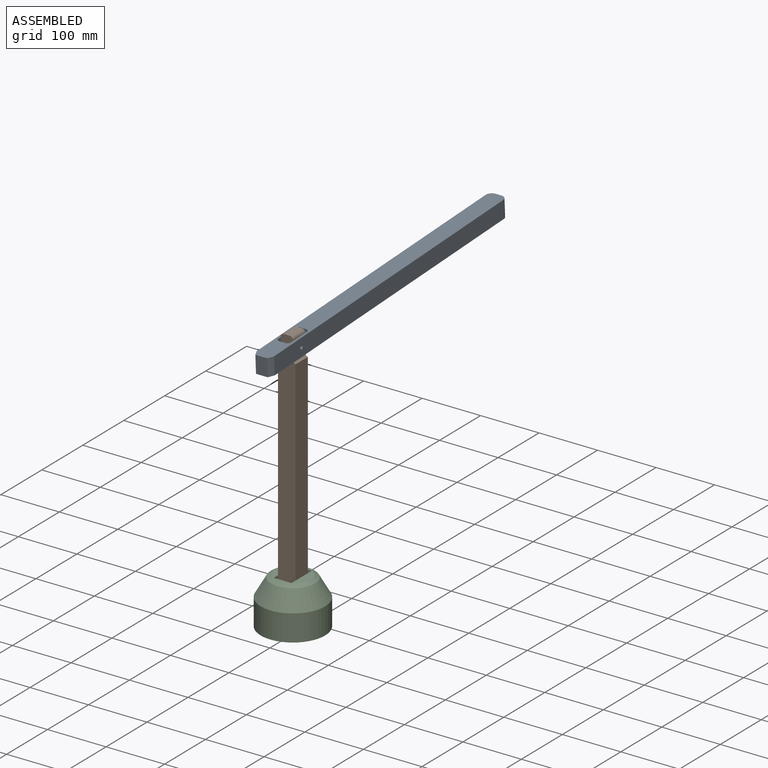
[diagram: assembled view]
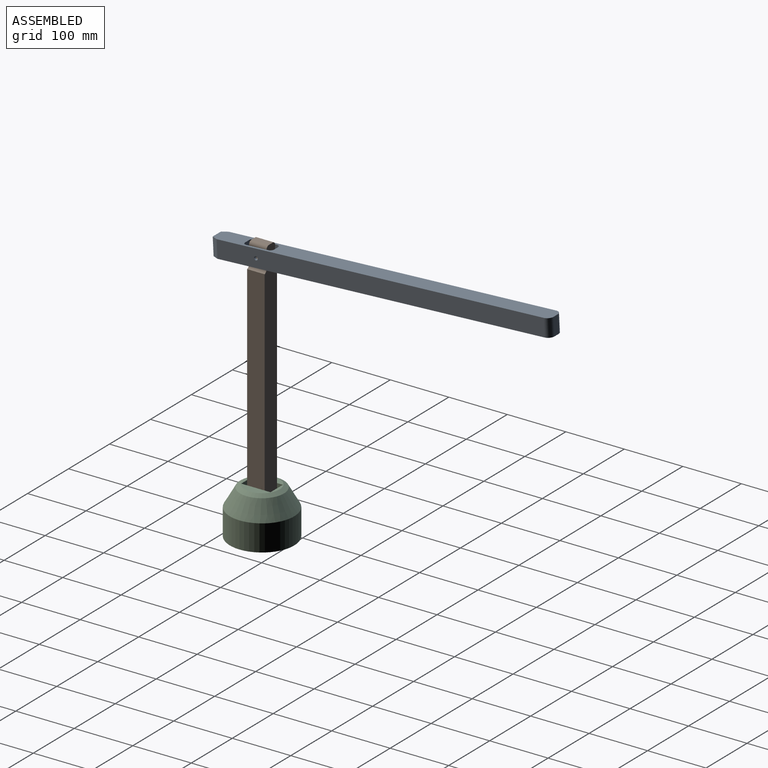
[diagram: assembled view, second angle]
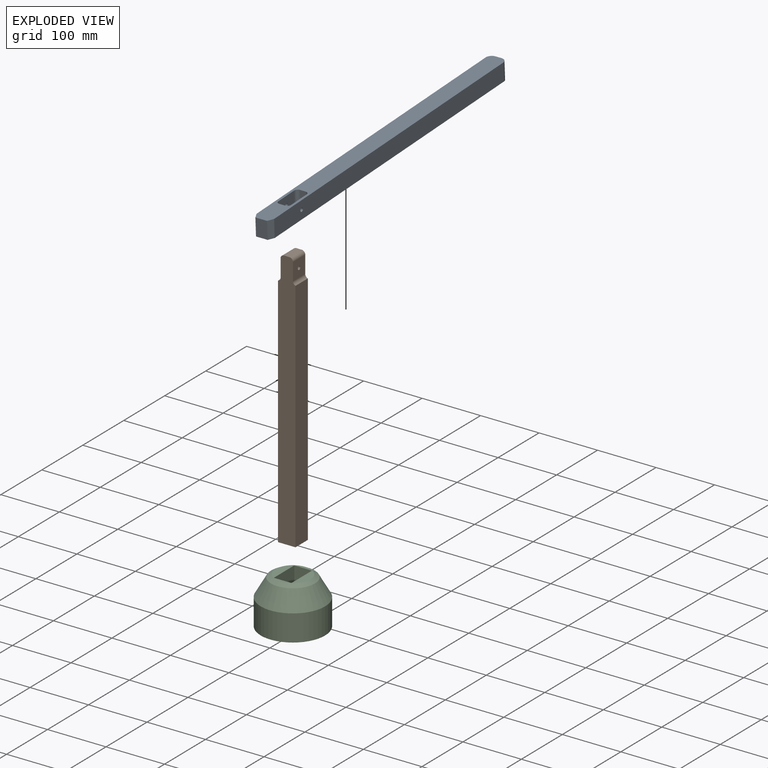
[diagram: exploded view]
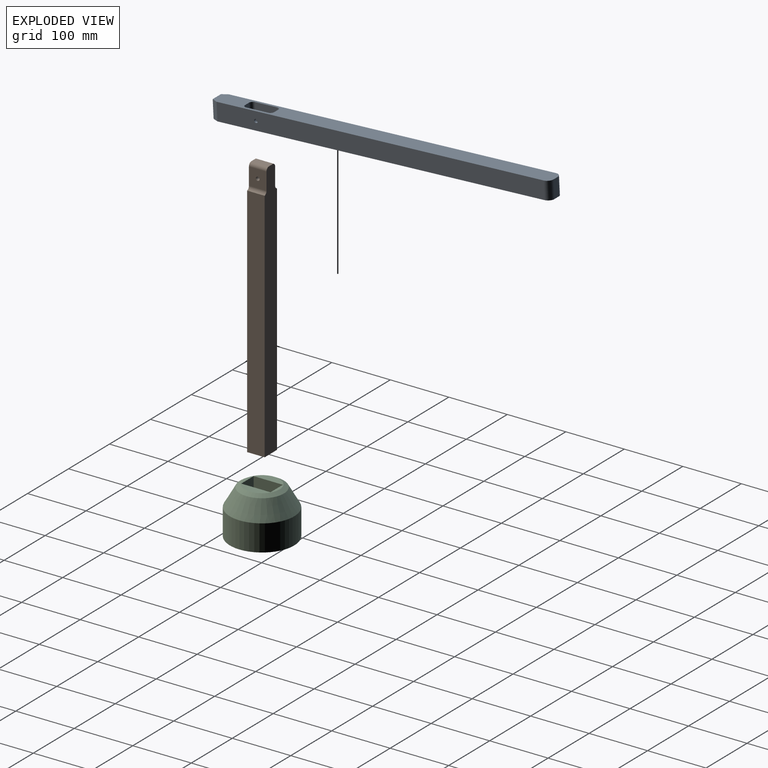
[diagram: exploded view, second angle]
ASSEMBLY  parts=3 mates=2
PART A: 29 faces, bbox 580x30x30 mm
  f0: plane 580x30mm, normal (0,0,1), area 8079.9mm2, adj f2,f3,f4,f5,f6,f7,f8,f9
  f1: plane 580x30mm, normal (0,0,-1), area 16258mm2, adj f2,f3,f4,f5,f6,f7,f8,f9
  f2: plane 560x30mm, normal (0,-1,0), area 16769.8mm2, adj f0,f1,f6,f8,f27
  f3: plane 560x30mm, normal (0,1,0), area 16769.8mm2, adj f0,f1,f7,f9,f28
  f4: plane 30x10mm, normal (1,0,0), area 300mm2, adj f0,f1,f6,f7
  f5: plane 30x20mm, normal (-1,0,0), area 600mm2, adj f0,f1,f8,f9
  f6: cylinder r=10mm len=30mm, axis (0,0,1), area 471.2mm2, adj f0,f1,f2,f4
  f7: cylinder r=10mm len=30mm, axis (0,0,-1), area 471.2mm2, adj f0,f1,f3,f4
  f8: plane 30x10mm, normal (-0.45,-0.89,0), area 335.4mm2, adj f0,f1,f2,f5
  f9: plane 30x10mm, normal (-0.45,0.89,0), area 335.4mm2, adj f0,f1,f3,f5
  f10: cylinder r=5.8mm len=20mm, axis (0,0,1), area 182.2mm2, adj f0,f11,f17,f18
  f11: plane 20x10mm, normal (-1,0,0), area 200mm2, adj f0,f10,f12,f18
  f12: cylinder r=5.8mm len=20mm, axis (0,0,1), area 182.2mm2, adj f0,f11,f13,f18
  f13: plane 368.2x20mm, normal (0,-1,0), area 7364mm2, adj f0,f12,f14,f18
  f14: cylinder r=6mm len=20mm, axis (0,0,1), area 188.5mm2, adj f0,f13,f15,f18
  f15: plane 20x9.6mm, normal (1,0,0), area 192mm2, adj f0,f14,f16,f18
  f16: cylinder r=6mm len=20mm, axis (0,0,1), area 188.5mm2, adj f0,f15,f17,f18
  f17: plane 368.2x20mm, normal (0,1,0), area 7364mm2, adj f0,f10,f16,f18
  f18: plane 380x21.6mm, normal (0,0,1), area 8178.1mm2, adj f10,f11,f12,f13,f14,f15,f16,f17
  f19: plane 30x9.6mm, normal (-1,0,0), area 288mm2, adj f0,f1,f20,f26
  f20: cylinder r=6mm len=30mm, axis (0,0,1), area 282.7mm2, adj f0,f1,f19,f21
  f21: plane 38x30mm, normal (0,-1,0), area 1109.8mm2, adj f0,f1,f20,f22,f28
  f22: cylinder r=6mm len=30mm, axis (0,0,1), area 282.7mm2, adj f0,f1,f21,f23
  f23: plane 30x9.6mm, normal (1,0,0), area 288mm2, adj f0,f1,f22,f24
  f24: cylinder r=6mm len=30mm, axis (0,0,1), area 282.7mm2, adj f0,f1,f23,f25
  f25: plane 38x30mm, normal (0,1,0), area 1109.8mm2, adj f0,f1,f24,f26,f27
  f26: cylinder r=6mm len=30mm, axis (0,0,1), area 282.7mm2, adj f0,f1,f19,f25
  f27: cylinder r=3.1mm len=6.2mm, axis (0,-1,0), area 81.8mm2, adj f2,f25
  f28: cylinder r=3.1mm len=6.2mm, axis (0,-1,0), area 81.8mm2, adj f3,f21
PART B: 13 faces, bbox 30x30x445.6 mm
  f0: plane 404.02x30mm, normal (-1,0,0), area 12120.5mm2, adj f2,f3,f4,f5
  f1: plane 404.02x30mm, normal (1,0,0), area 12120.5mm2, adj f2,f3,f4,f11
  f2: plane 445.6x30mm, normal (0,1,0), area 13000mm2, adj f0,f1,f4,f5,f6,f7,f8,f9
  f3: plane 445.6x30mm, normal (0,-1,0), area 13000mm2, adj f0,f1,f4,f5,f6,f7,f8,f9
  f4: plane 30x30mm, normal (0,0,-1), area 900mm2, adj f0,f1,f2,f3
  f5: cylinder r=6mm len=30mm, axis (0,-1,0), area 234.2mm2, adj f0,f2,f3,f6
  f6: plane 30x29.8mm, normal (-1,0,0), area 863.9mm2, adj f2,f3,f5,f7,f12
  f7: cylinder r=6mm len=30mm, axis (0,-1,0), area 276.7mm2, adj f2,f3,f6,f8
  f8: plane 30x9.6mm, normal (0,0,1), area 288mm2, adj f2,f3,f7,f9
  f9: cylinder r=6mm len=30mm, axis (0,-1,0), area 276.7mm2, adj f2,f3,f8,f10
  f10: plane 30x29.8mm, normal (1,0,0), area 863.9mm2, adj f2,f3,f9,f11,f12
  f11: cylinder r=6mm len=30mm, axis (0,-1,0), area 234.2mm2, adj f1,f2,f3,f10
  f12: cylinder r=3.1mm len=21.2mm, axis (-1,0,0), area 412.9mm2, adj f6,f10
PART C: 10 faces, bbox 110x110x80 mm
  f0: plane 60x60mm, normal (0,0,1), area 1317.4mm2, adj f4,f5,f6,f7,f8
  f1: cylinder r=55mm len=110mm, axis (0,0,-1), area 15550.9mm2, adj f2,f3
  f2: plane 110x110mm, normal (0,0,-1), area 9503.3mm2, adj f1
  f3: cone r=35mm half-angle=29.7deg, axis (0,0,-1), area 10259.2mm2, adj f1,f4
  f4: cone r=30mm half-angle=59.9deg, axis (0,0,-1), area 1833.6mm2, adj f0,f3
  f5: plane 70x30.2mm, normal (0,-1,0), area 2114mm2, adj f0,f6,f8,f9
  f6: plane 70x50mm, normal (1,0,0), area 3500mm2, adj f0,f5,f7,f9
  f7: plane 70x30.2mm, normal (0,1,0), area 2114mm2, adj f0,f6,f8,f9
  f8: plane 70x50mm, normal (-1,0,0), area 3500mm2, adj f0,f5,f7,f9
  f9: plane 50x30.2mm, normal (0,0,1), area 1510mm2, adj f5,f6,f7,f8
PLACE A rot(axis=(-0.71,-0.71,-0.02),178deg) t=(119.99,-1.98,-3.63)mm
PLACE B t=(119.99,-215.05,-438.98)mm
PLACE C t=(119.99,-215.05,-448.98)mm fixed
MATE revolute A.f27 <-> B.f12  axis (1,0,0) through (109.19,-215.05,-14.28)mm
MATE fastened B.f4 <-> C.f1  axis (0,0,-1) through (119.99,-215.05,-438.98)mm
